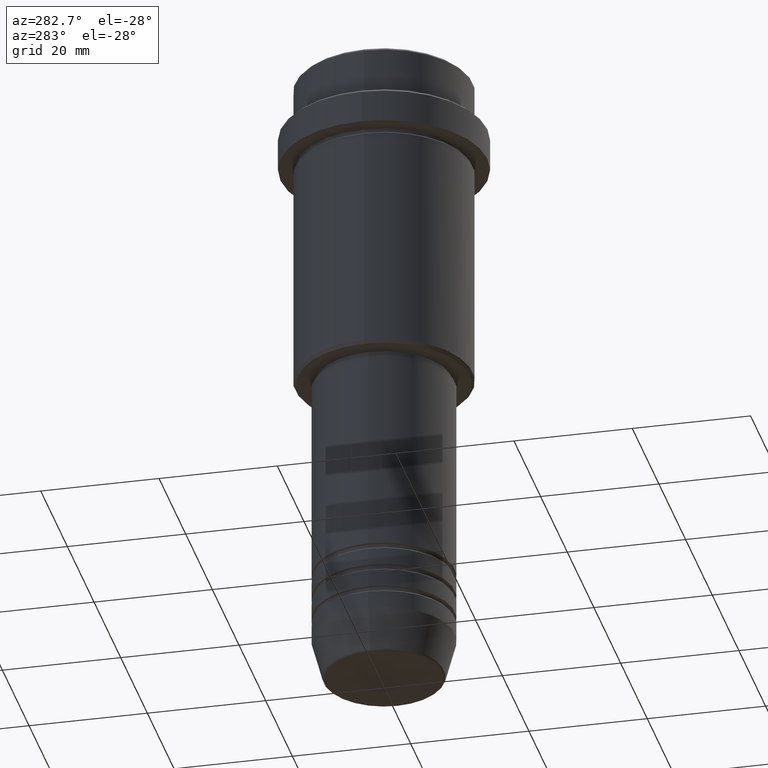
[diagram: clean part render]
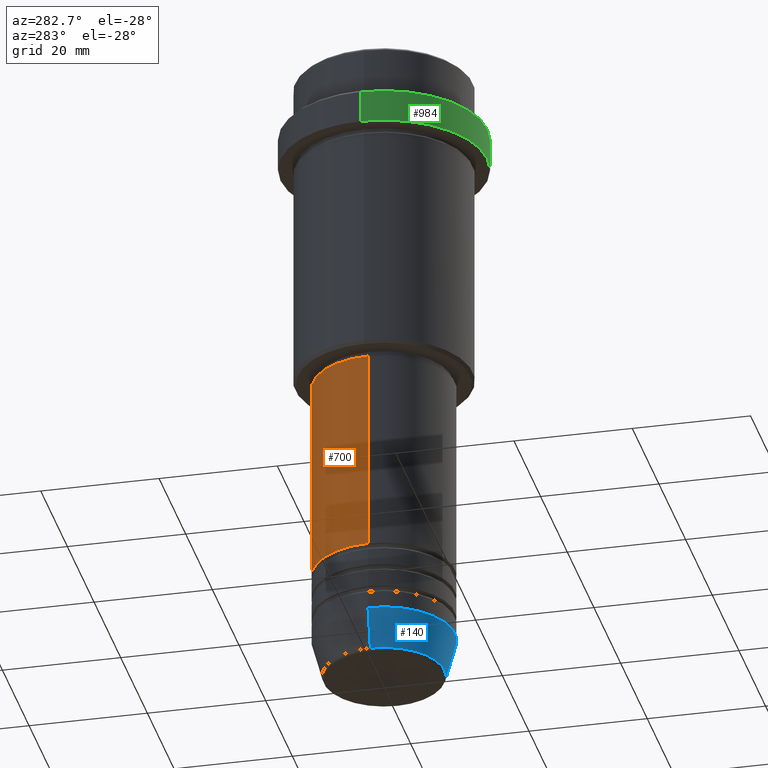
[diagram: same view with three faces highlighted in distinct colors, each labeled with its STEP entity id]
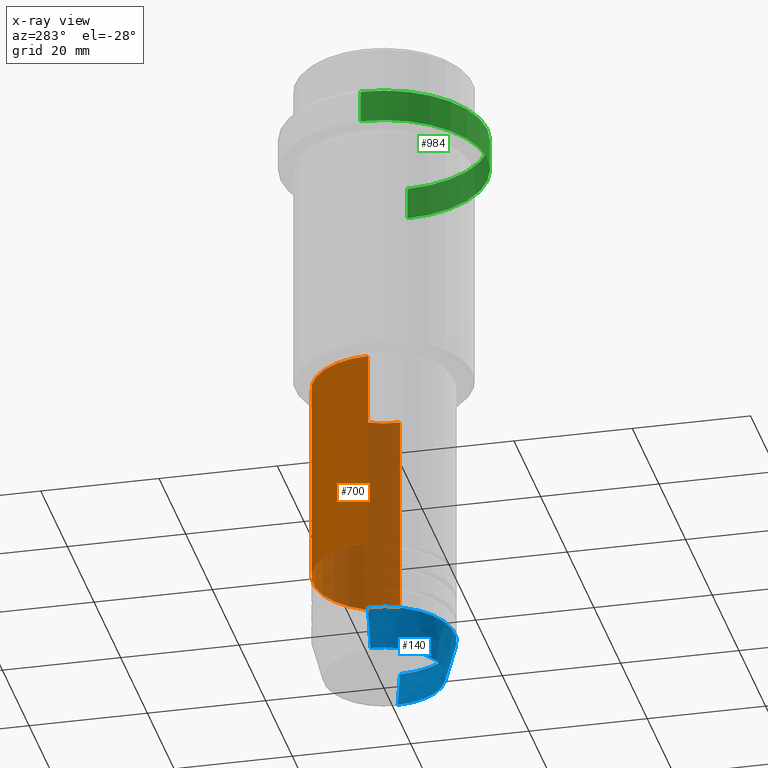
[diagram: x-ray of the same camera — body ghosted, the three highlighted faces saturated]
A machine part, auxiliary view with three faces highlighted in distinct colors.
The next image is the same camera in x-ray (body ghosted, the three faces saturated) — at least one of them is partly hidden behind the body in this view.
Their STEP definitions:

[orange] entity #700 — the highlighted cylindrical surface (partial cylindrical patch) has radius 12 mm, axis along (-0, -0, 1).
#61 = CIRCLE ( 'NONE', #696, 12.00000000000000000 ) ;
#77 = LINE ( 'NONE', #161, #1036 ) ;
#147 = AXIS2_PLACEMENT_3D ( 'NONE', #225, #989, #576 ) ;
#161 = CARTESIAN_POINT ( 'NONE',  ( -12.00000000000000000, 1.469576158976823947E-15, 0.000000000000000000 ) ) ;
#190 = EDGE_CURVE ( 'NONE', #1001, #768, #593, .T. ) ;
#212 = ORIENTED_EDGE ( 'NONE', *, *, #550, .T. ) ;
#225 = CARTESIAN_POINT ( 'NONE',  ( 0.000000000000000000, 0.000000000000000000, 0.000000000000000000 ) ) ;
#303 = DIRECTION ( 'NONE',  ( 1.000000000000000000, 0.000000000000000000, 0.000000000000000000 ) ) ;
#351 = CARTESIAN_POINT ( 'NONE',  ( 0.000000000000000000, 0.000000000000000000, -90.99999999999988631 ) ) ;
#355 = EDGE_CURVE ( 'NONE', #768, #1218, #835, .T. ) ;
#375 = DIRECTION ( 'NONE',  ( -0.000000000000000000, -0.000000000000000000, 1.000000000000000000 ) ) ;
#403 = ORIENTED_EDGE ( 'NONE', *, *, #190, .F. ) ;
#449 = CARTESIAN_POINT ( 'NONE',  ( -12.00000000000000000, 1.469576158976823947E-15, -90.99999999999988631 ) ) ;
#457 = FACE_OUTER_BOUND ( 'NONE', #1362, .T. ) ;
#470 = ORIENTED_EDGE ( 'NONE', *, *, #355, .F. ) ;
#518 = CARTESIAN_POINT ( 'NONE',  ( 0.000000000000000000, 0.000000000000000000, -55.99999999999997868 ) ) ;
#550 = EDGE_CURVE ( 'NONE', #776, #1218, #77, .T. ) ;
#560 = DIRECTION ( 'NONE',  ( 1.000000000000000000, 0.000000000000000000, 0.000000000000000000 ) ) ;
#576 = DIRECTION ( 'NONE',  ( 1.000000000000000000, 0.000000000000000000, 0.000000000000000000 ) ) ;
#593 = LINE ( 'NONE', #1015, #762 ) ;
#619 = CARTESIAN_POINT ( 'NONE',  ( 12.00000000000000000, 0.000000000000000000, -90.99999999999988631 ) ) ;
#696 = AXIS2_PLACEMENT_3D ( 'NONE', #351, #1310, #560 ) ;
#700 = ADVANCED_FACE ( 'NONE', ( #457 ), #1325, .T. ) ;
#762 = VECTOR ( 'NONE', #904, 1000.000000000000000 ) ;
#765 = AXIS2_PLACEMENT_3D ( 'NONE', #518, #852, #303 ) ;
#768 = VERTEX_POINT ( 'NONE', #1098 ) ;
#776 = VERTEX_POINT ( 'NONE', #449 ) ;
#783 = EDGE_CURVE ( 'NONE', #1001, #776, #61, .T. ) ;
#835 = CIRCLE ( 'NONE', #765, 11.99999999999999822 ) ;
#852 = DIRECTION ( 'NONE',  ( -0.000000000000000000, -0.000000000000000000, 1.000000000000000000 ) ) ;
#904 = DIRECTION ( 'NONE',  ( -0.000000000000000000, -0.000000000000000000, 1.000000000000000000 ) ) ;
#989 = DIRECTION ( 'NONE',  ( -0.000000000000000000, -0.000000000000000000, 1.000000000000000000 ) ) ;
#1001 = VERTEX_POINT ( 'NONE', #619 ) ;
#1015 = CARTESIAN_POINT ( 'NONE',  ( 12.00000000000000000, 0.000000000000000000, 0.000000000000000000 ) ) ;
#1036 = VECTOR ( 'NONE', #375, 1000.000000000000000 ) ;
#1098 = CARTESIAN_POINT ( 'NONE',  ( 11.99999999999999822, 0.000000000000000000, -55.99999999999997868 ) ) ;
#1104 = CARTESIAN_POINT ( 'NONE',  ( -11.99999999999999822, 1.469576158976823750E-15, -55.99999999999997868 ) ) ;
#1188 = ORIENTED_EDGE ( 'NONE', *, *, #783, .T. ) ;
#1218 = VERTEX_POINT ( 'NONE', #1104 ) ;
#1310 = DIRECTION ( 'NONE',  ( -0.000000000000000000, -0.000000000000000000, 1.000000000000000000 ) ) ;
#1325 = CYLINDRICAL_SURFACE ( 'NONE', #147, 12.00000000000000000 ) ;
#1362 = EDGE_LOOP ( 'NONE', ( #1188, #212, #470, #403 ) ) ;

[blue] entity #140 — the highlighted conical surface has half-angle 15 deg.
#2 = CARTESIAN_POINT ( 'NONE',  ( 0.000000000000000000, 0.000000000000000000, -109.6294095225512564 ) ) ;
#4 = LINE ( 'NONE', #448, #1114 ) ;
#8 = ORIENTED_EDGE ( 'NONE', *, *, #554, .T. ) ;
#135 = DIRECTION ( 'NONE',  ( -0.000000000000000000, -0.000000000000000000, 1.000000000000000000 ) ) ;
#140 = ADVANCED_FACE ( 'NONE', ( #1259 ), #804, .T. ) ;
#170 = CARTESIAN_POINT ( 'NONE',  ( 0.000000000000000000, 0.000000000000000000, -103.0000000000000142 ) ) ;
#229 = CARTESIAN_POINT ( 'NONE',  ( 0.000000000000000000, 0.000000000000000000, -103.0000000000000142 ) ) ;
#297 = DIRECTION ( 'NONE',  ( 1.000000000000000000, 0.000000000000000000, 0.000000000000000000 ) ) ;
#324 = DIRECTION ( 'NONE',  ( 1.000000000000000000, 0.000000000000000000, 0.000000000000000000 ) ) ;
#327 = CARTESIAN_POINT ( 'NONE',  ( 12.00000000000000000, 0.000000000000000000, -103.0000000000000142 ) ) ;
#388 = CARTESIAN_POINT ( 'NONE',  ( -12.00000000000000000, 1.469576158976823947E-15, -103.0000000000000142 ) ) ;
#404 = CARTESIAN_POINT ( 'NONE',  ( -10.22365507213718772, 1.360806402472382350E-15, -109.6294095225512564 ) ) ;
#440 = DIRECTION ( 'NONE',  ( -0.2588190451025218497, 3.169619151431778500E-17, 0.9659258262890679791 ) ) ;
#448 = CARTESIAN_POINT ( 'NONE',  ( -12.00000000000000000, 1.469576158976823947E-15, -103.0000000000000142 ) ) ;
#545 = AXIS2_PLACEMENT_3D ( 'NONE', #229, #135, #549 ) ;
#546 = CIRCLE ( 'NONE', #569, 10.22365507213718772 ) ;
#549 = DIRECTION ( 'NONE',  ( 1.000000000000000000, 0.000000000000000000, 0.000000000000000000 ) ) ;
#554 = EDGE_CURVE ( 'NONE', #715, #1173, #605, .T. ) ;
#569 = AXIS2_PLACEMENT_3D ( 'NONE', #2, #1306, #324 ) ;
#605 = LINE ( 'NONE', #919, #1219 ) ;
#617 = DIRECTION ( 'NONE',  ( -0.000000000000000000, -0.000000000000000000, 1.000000000000000000 ) ) ;
#695 = AXIS2_PLACEMENT_3D ( 'NONE', #170, #617, #297 ) ;
#715 = VERTEX_POINT ( 'NONE', #784 ) ;
#751 = ORIENTED_EDGE ( 'NONE', *, *, #1126, .F. ) ;
#784 = CARTESIAN_POINT ( 'NONE',  ( 10.22365507213718772, 0.000000000000000000, -109.6294095225512564 ) ) ;
#804 = CONICAL_SURFACE ( 'NONE', #695, 12.00000000000000000, 0.2617993877991505736 ) ;
#806 = ORIENTED_EDGE ( 'NONE', *, *, #1385, .T. ) ;
#815 = DIRECTION ( 'NONE',  ( 0.2588190451025218497, 0.000000000000000000, 0.9659258262890679791 ) ) ;
#881 = CIRCLE ( 'NONE', #545, 12.00000000000000000 ) ;
#883 = VERTEX_POINT ( 'NONE', #388 ) ;
#919 = CARTESIAN_POINT ( 'NONE',  ( 12.00000000000000000, 0.000000000000000000, -103.0000000000000142 ) ) ;
#962 = EDGE_LOOP ( 'NONE', ( #751, #806, #8, #1121 ) ) ;
#1076 = EDGE_CURVE ( 'NONE', #883, #1173, #881, .T. ) ;
#1114 = VECTOR ( 'NONE', #440, 1000.000000000000000 ) ;
#1121 = ORIENTED_EDGE ( 'NONE', *, *, #1076, .F. ) ;
#1126 = EDGE_CURVE ( 'NONE', #1176, #883, #4, .T. ) ;
#1173 = VERTEX_POINT ( 'NONE', #327 ) ;
#1176 = VERTEX_POINT ( 'NONE', #404 ) ;
#1219 = VECTOR ( 'NONE', #815, 1000.000000000000000 ) ;
#1259 = FACE_OUTER_BOUND ( 'NONE', #962, .T. ) ;
#1306 = DIRECTION ( 'NONE',  ( -0.000000000000000000, -0.000000000000000000, 1.000000000000000000 ) ) ;
#1385 = EDGE_CURVE ( 'NONE', #1176, #715, #546, .T. ) ;

[green] entity #984 — the highlighted cylindrical surface (partial cylindrical patch) has radius 17.5 mm, axis along (-0, -0, 1).
#10 = VERTEX_POINT ( 'NONE', #683 ) ;
#44 = VECTOR ( 'NONE', #1082, 1000.000000000000000 ) ;
#159 = CARTESIAN_POINT ( 'NONE',  ( -17.50000000000000000, 2.143131898507868248E-15, -15.00000000000000178 ) ) ;
#162 = CARTESIAN_POINT ( 'NONE',  ( 0.000000000000000000, 0.000000000000000000, -9.499999999999973355 ) ) ;
#174 = DIRECTION ( 'NONE',  ( -0.000000000000000000, -0.000000000000000000, 1.000000000000000000 ) ) ;
#199 = VECTOR ( 'NONE', #734, 1000.000000000000000 ) ;
#302 = LINE ( 'NONE', #725, #199 ) ;
#304 = DIRECTION ( 'NONE',  ( 1.000000000000000000, 0.000000000000000000, 0.000000000000000000 ) ) ;
#348 = CIRCLE ( 'NONE', #1132, 17.50000000000000000 ) ;
#432 = AXIS2_PLACEMENT_3D ( 'NONE', #753, #174, #1184 ) ;
#456 = AXIS2_PLACEMENT_3D ( 'NONE', #162, #508, #304 ) ;
#508 = DIRECTION ( 'NONE',  ( 0.000000000000000000, 0.000000000000000000, -1.000000000000000000 ) ) ;
#626 = LINE ( 'NONE', #1171, #44 ) ;
#648 = ORIENTED_EDGE ( 'NONE', *, *, #1187, .T. ) ;
#654 = CARTESIAN_POINT ( 'NONE',  ( 0.000000000000000000, 0.000000000000000000, -15.00000000000000178 ) ) ;
#683 = CARTESIAN_POINT ( 'NONE',  ( -17.50000000000000000, 2.143131898507868248E-15, -9.499999999999973355 ) ) ;
#685 = VERTEX_POINT ( 'NONE', #755 ) ;
#693 = CARTESIAN_POINT ( 'NONE',  ( 17.50000000000000000, 0.000000000000000000, -9.499999999999973355 ) ) ;
#725 = CARTESIAN_POINT ( 'NONE',  ( 17.50000000000000000, 0.000000000000000000, 0.000000000000000000 ) ) ;
#734 = DIRECTION ( 'NONE',  ( -0.000000000000000000, -0.000000000000000000, 1.000000000000000000 ) ) ;
#736 = CYLINDRICAL_SURFACE ( 'NONE', #432, 17.50000000000000000 ) ;
#753 = CARTESIAN_POINT ( 'NONE',  ( 0.000000000000000000, 0.000000000000000000, 0.000000000000000000 ) ) ;
#755 = CARTESIAN_POINT ( 'NONE',  ( 17.50000000000000000, 0.000000000000000000, -15.00000000000000178 ) ) ;
#882 = CIRCLE ( 'NONE', #456, 17.50000000000000000 ) ;
#885 = EDGE_LOOP ( 'NONE', ( #1323, #1212, #648, #896 ) ) ;
#890 = DIRECTION ( 'NONE',  ( -0.000000000000000000, -0.000000000000000000, 1.000000000000000000 ) ) ;
#896 = ORIENTED_EDGE ( 'NONE', *, *, #1276, .T. ) ;
#929 = VERTEX_POINT ( 'NONE', #159 ) ;
#984 = ADVANCED_FACE ( 'NONE', ( #1279 ), #736, .T. ) ;
#1065 = EDGE_CURVE ( 'NONE', #929, #685, #348, .T. ) ;
#1082 = DIRECTION ( 'NONE',  ( -0.000000000000000000, -0.000000000000000000, 1.000000000000000000 ) ) ;
#1096 = DIRECTION ( 'NONE',  ( 1.000000000000000000, 0.000000000000000000, 0.000000000000000000 ) ) ;
#1132 = AXIS2_PLACEMENT_3D ( 'NONE', #654, #890, #1096 ) ;
#1171 = CARTESIAN_POINT ( 'NONE',  ( -17.50000000000000000, 2.143131898507868248E-15, 0.000000000000000000 ) ) ;
#1184 = DIRECTION ( 'NONE',  ( 1.000000000000000000, 0.000000000000000000, 0.000000000000000000 ) ) ;
#1187 = EDGE_CURVE ( 'NONE', #685, #1203, #302, .T. ) ;
#1203 = VERTEX_POINT ( 'NONE', #693 ) ;
#1212 = ORIENTED_EDGE ( 'NONE', *, *, #1065, .T. ) ;
#1276 = EDGE_CURVE ( 'NONE', #1203, #10, #882, .T. ) ;
#1279 = FACE_OUTER_BOUND ( 'NONE', #885, .T. ) ;
#1323 = ORIENTED_EDGE ( 'NONE', *, *, #1403, .F. ) ;
#1403 = EDGE_CURVE ( 'NONE', #929, #10, #626, .T. ) ;